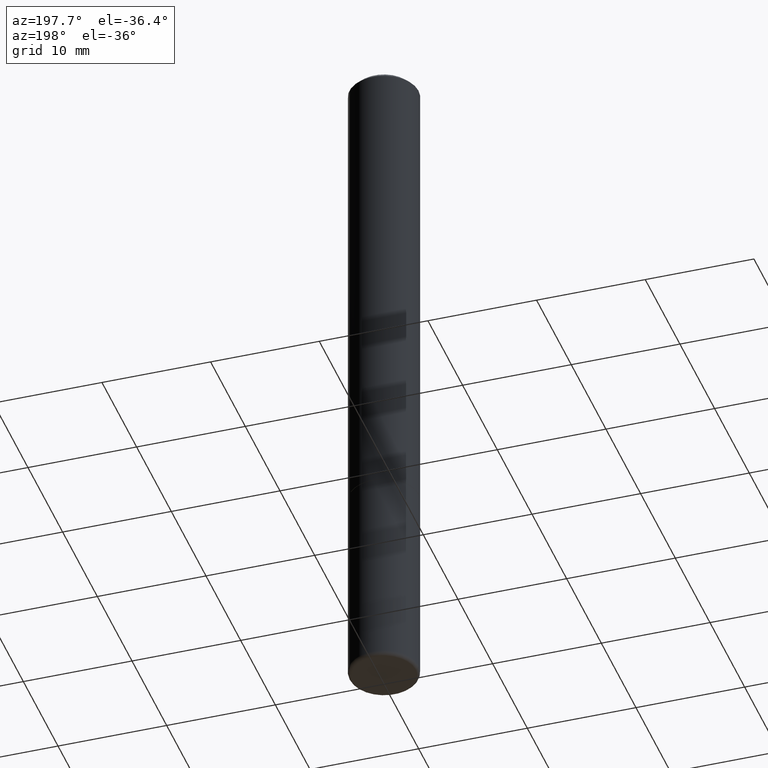
[diagram: clean part render]
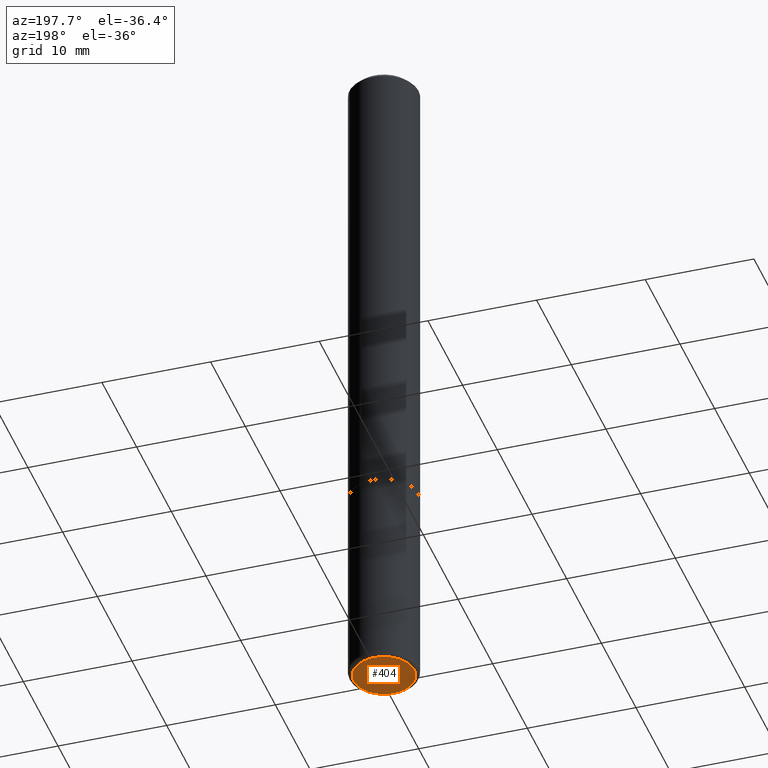
[diagram: same view with one face highlighted and labeled with its STEP entity id]
A machine part, auxiliary view. The second image highlights one B-rep face of the part: STEP entity #404.
In plain terms, the highlighted planar face has unit normal (0, -0, -1).
Its self-contained STEP definition (entity closure, byte-faithful):
#5 = DIRECTION ( 'NONE',  ( 1.000000000000000000, -6.982962677686270655E-15, 0.000000000000000000 ) ) ;
#7 = VERTEX_POINT ( 'NONE', #199 ) ;
#10 = CARTESIAN_POINT ( 'NONE',  ( 6.113672015462842613E-29, -8.728703347107864943E-15, -2.500000000000000000 ) ) ;
#32 = DIRECTION ( 'NONE',  ( -2.445468806185136597E-29, 3.491481338843145583E-15, 1.000000000000000000 ) ) ;
#53 = AXIS2_PLACEMENT_3D ( 'NONE', #10, #243, #208 ) ;
#69 = AXIS2_PLACEMENT_3D ( 'NONE', #258, #32, #5 ) ;
#73 = CIRCLE ( 'NONE', #275, 0.1100000000000000006 ) ;
#83 = DIRECTION ( 'NONE',  ( -2.445468806185136597E-29, 3.491481338843145583E-15, 1.000000000000000000 ) ) ;
#116 = EDGE_LOOP ( 'NONE', ( #358, #380 ) ) ;
#142 = EDGE_CURVE ( 'NONE', #7, #150, #73, .T. ) ;
#150 = VERTEX_POINT ( 'NONE', #219 ) ;
#185 = CARTESIAN_POINT ( 'NONE',  ( 6.113672015462842613E-29, -8.728703347107864943E-15, -2.500000000000000000 ) ) ;
#199 = CARTESIAN_POINT ( 'NONE',  ( 0.1100000000000000006, -9.496829241653354912E-15, -2.500000000000000000 ) ) ;
#208 = DIRECTION ( 'NONE',  ( -1.000000000000000000, 6.982962677686265922E-15, -4.876176775795935793E-29 ) ) ;
#214 = FACE_OUTER_BOUND ( 'NONE', #116, .T. ) ;
#219 = CARTESIAN_POINT ( 'NONE',  ( -0.1100000000000000006, -7.867629522548422746E-15, -2.500000000000000000 ) ) ;
#243 = DIRECTION ( 'NONE',  ( 2.438088387897960049E-29, -3.491481338843145188E-15, -1.000000000000000000 ) ) ;
#258 = CARTESIAN_POINT ( 'NONE',  ( 6.113672015462842613E-29, -8.728703347107864943E-15, -2.500000000000000000 ) ) ;
#265 = EDGE_CURVE ( 'NONE', #150, #7, #414, .T. ) ;
#267 = PLANE ( 'NONE',  #53 ) ;
#275 = AXIS2_PLACEMENT_3D ( 'NONE', #185, #83, #391 ) ;
#358 = ORIENTED_EDGE ( 'NONE', *, *, #142, .F. ) ;
#380 = ORIENTED_EDGE ( 'NONE', *, *, #265, .F. ) ;
#391 = DIRECTION ( 'NONE',  ( 1.000000000000000000, -6.982962677686270655E-15, 0.000000000000000000 ) ) ;
#404 = ADVANCED_FACE ( 'NONE', ( #214 ), #267, .T. ) ;
#414 = CIRCLE ( 'NONE', #69, 0.1100000000000000006 ) ;